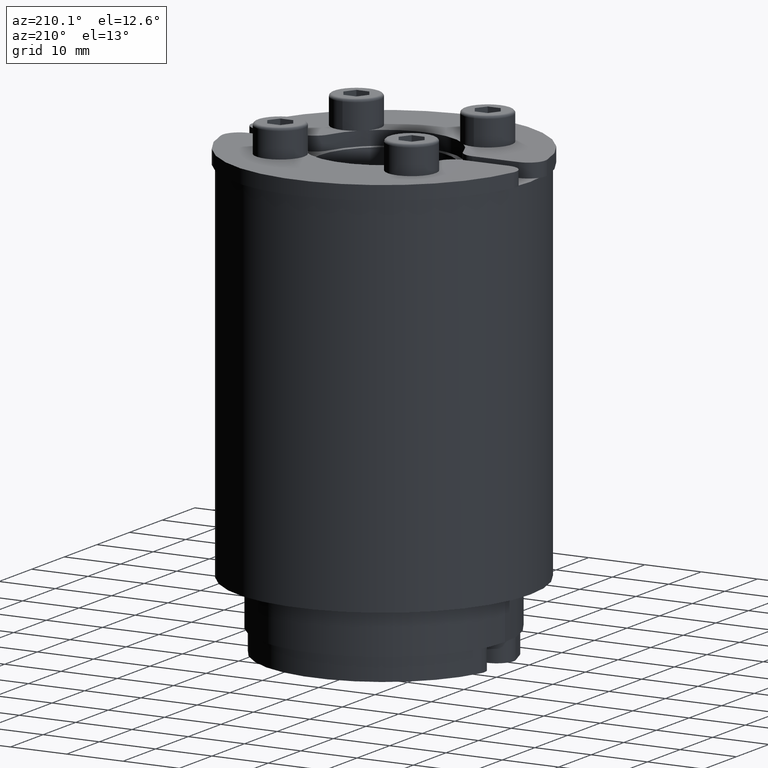
[diagram: clean part render]
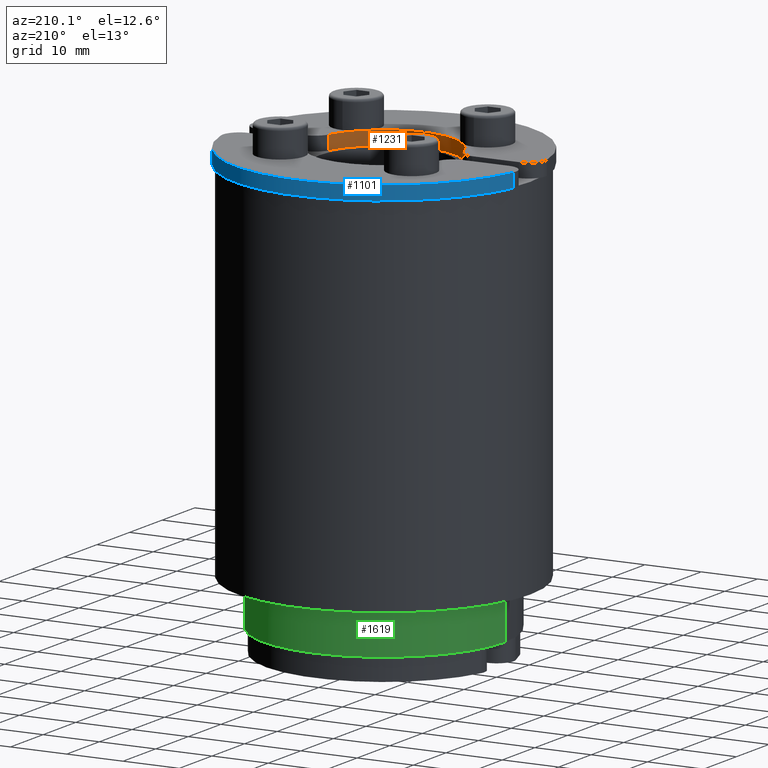
[diagram: same view with three faces highlighted in distinct colors, each labeled with its STEP entity id]
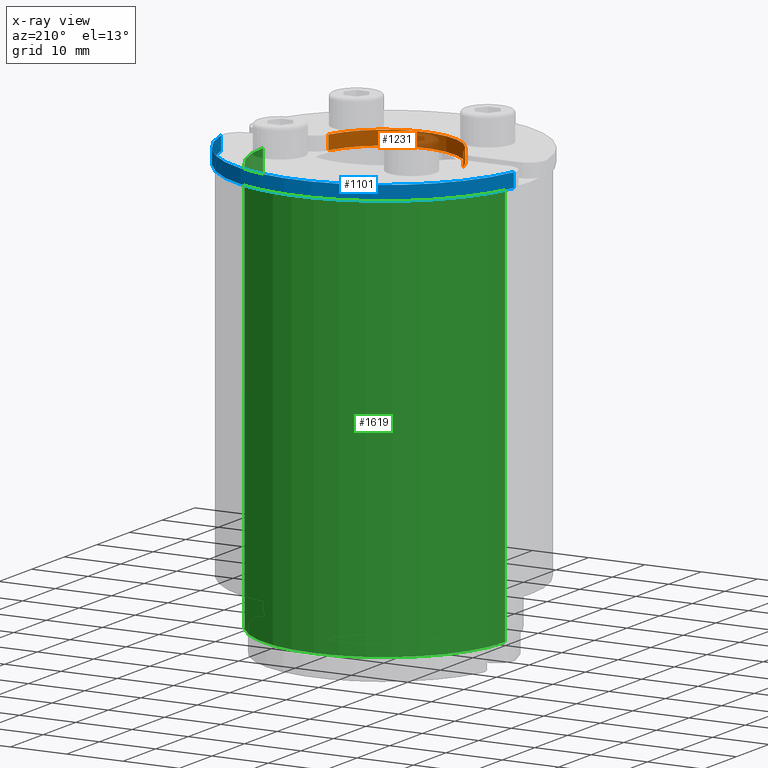
[diagram: x-ray of the same camera — body ghosted, the three highlighted faces saturated]
A machine part, auxiliary view with three faces highlighted in distinct colors.
The next image is the same camera in x-ray (body ghosted, the three faces saturated) — at least one of them is partly hidden behind the body in this view.
Their STEP definitions:

[orange] entity #1231 — the highlighted cylindrical surface (partial cylindrical patch) has radius 12.5 mm, axis along (0, 0, 1).
#1171=CARTESIAN_POINT('',(12.107005237132807,27.977345440083496,0.0));
#1172=VERTEX_POINT('',#1171);
#1181=CARTESIAN_POINT('',(12.107005237132809,27.977345440083496,2.5));
#1182=VERTEX_POINT('',#1181);
#1190=CARTESIAN_POINT('',(12.107005237132807,27.977345440083496,0.0));
#1191=DIRECTION('',(0.0,0.0,1.0));
#1192=VECTOR('',#1191,2.5);
#1193=LINE('',#1190,#1192);
#1194=EDGE_CURVE('',#1172,#1182,#1193,.T.);
#1199=CARTESIAN_POINT('',(24.068615700190353,31.606377698147931,0.0));
#1200=DIRECTION('',(0.0,0.0,1.0));
#1201=DIRECTION('',(-0.956928837044604,-0.290322580645155,0.0));
#1202=AXIS2_PLACEMENT_3D('',#1199,#1200,#1201);
#1203=CYLINDRICAL_SURFACE('',#1202,12.500000000000002);
#1204=CARTESIAN_POINT('',(36.030226163247917,27.977345440083496,0.0));
#1205=VERTEX_POINT('',#1204);
#1206=CARTESIAN_POINT('',(24.068615700190353,31.606377698147931,0.0));
#1207=DIRECTION('',(0.0,0.0,1.0));
#1208=DIRECTION('',(-0.956928837044604,-0.290322580645155,0.0));
#1209=AXIS2_PLACEMENT_3D('',#1206,#1207,#1208);
#1210=CIRCLE('',#1209,12.5);
#1211=EDGE_CURVE('',#1172,#1205,#1210,.T.);
#1212=ORIENTED_EDGE('',*,*,#1211,.F.);
#1213=ORIENTED_EDGE('',*,*,#1194,.T.);
#1214=CARTESIAN_POINT('',(36.030226163247917,27.977345440083496,2.5));
#1215=VERTEX_POINT('',#1214);
#1216=CARTESIAN_POINT('',(24.068615700190353,31.606377698147931,2.5));
#1217=DIRECTION('',(0.0,0.0,-1.0));
#1218=DIRECTION('',(-0.956928837044604,-0.290322580645155,0.0));
#1219=AXIS2_PLACEMENT_3D('',#1216,#1217,#1218);
#1220=CIRCLE('',#1219,12.5);
#1221=EDGE_CURVE('',#1215,#1182,#1220,.T.);
#1222=ORIENTED_EDGE('',*,*,#1221,.F.);
#1223=CARTESIAN_POINT('',(36.030226163247917,27.977345440083496,0.0));
#1224=DIRECTION('',(0.0,0.0,1.0));
#1225=VECTOR('',#1224,2.5);
#1226=LINE('',#1223,#1225);
#1227=EDGE_CURVE('',#1205,#1215,#1226,.T.);
#1228=ORIENTED_EDGE('',*,*,#1227,.F.);
#1229=EDGE_LOOP('',(#1212,#1213,#1222,#1228));
#1230=FACE_OUTER_BOUND('',#1229,.T.);
#1231=ADVANCED_FACE('',(#1230),#1203,.F.);

[blue] entity #1101 — the highlighted cylindrical surface (partial cylindrical patch) has radius 26.5 mm, axis along (0, 0, 1).
#1034=CARTESIAN_POINT('',(50.078224956256861,26.531909613042053,0.0));
#1035=VERTEX_POINT('',#1034);
#1051=CARTESIAN_POINT('',(50.078224956256861,26.531909613042053,2.5));
#1052=VERTEX_POINT('',#1051);
#1060=CARTESIAN_POINT('',(50.078224956256861,26.531909613042053,0.0));
#1061=DIRECTION('',(0.0,0.0,1.0));
#1062=VECTOR('',#1061,2.5);
#1063=LINE('',#1060,#1062);
#1064=EDGE_CURVE('',#1035,#1052,#1063,.T.);
#1069=CARTESIAN_POINT('',(24.068615700190353,31.606377698147021,0.0));
#1070=DIRECTION('',(0.0,0.0,1.0));
#1071=DIRECTION('',(0.981494688908164,0.191489361702071,0.0));
#1072=AXIS2_PLACEMENT_3D('',#1069,#1070,#1071);
#1073=CYLINDRICAL_SURFACE('',#1072,26.500000000000178);
#1074=CARTESIAN_POINT('',(-1.940993555876169,26.531909613042099,0.0));
#1075=VERTEX_POINT('',#1074);
#1076=CARTESIAN_POINT('',(24.068615700190353,31.606377698147021,0.0));
#1077=DIRECTION('',(0.0,0.0,-1.0));
#1078=DIRECTION('',(0.981494688908164,0.191489361702071,0.0));
#1079=AXIS2_PLACEMENT_3D('',#1076,#1077,#1078);
#1080=CIRCLE('',#1079,26.500000000000178);
#1081=EDGE_CURVE('',#1035,#1075,#1080,.T.);
#1082=ORIENTED_EDGE('',*,*,#1081,.F.);
#1083=ORIENTED_EDGE('',*,*,#1064,.T.);
#1084=CARTESIAN_POINT('',(-1.940993555876167,26.531909613042099,2.5));
#1085=VERTEX_POINT('',#1084);
#1086=CARTESIAN_POINT('',(24.068615700190353,31.606377698147021,2.5));
#1087=DIRECTION('',(0.0,0.0,1.0));
#1088=DIRECTION('',(0.981494688908164,0.191489361702071,0.0));
#1089=AXIS2_PLACEMENT_3D('',#1086,#1087,#1088);
#1090=CIRCLE('',#1089,26.500000000000178);
#1091=EDGE_CURVE('',#1085,#1052,#1090,.T.);
#1092=ORIENTED_EDGE('',*,*,#1091,.F.);
#1093=CARTESIAN_POINT('',(-1.940993555876169,26.531909613042099,0.0));
#1094=DIRECTION('',(0.0,0.0,1.0));
#1095=VECTOR('',#1094,2.5);
#1096=LINE('',#1093,#1095);
#1097=EDGE_CURVE('',#1075,#1085,#1096,.T.);
#1098=ORIENTED_EDGE('',*,*,#1097,.F.);
#1099=EDGE_LOOP('',(#1082,#1083,#1092,#1098));
#1100=FACE_OUTER_BOUND('',#1099,.T.);
#1101=ADVANCED_FACE('',(#1100),#1073,.T.);

[green] entity #1619 — the highlighted cylindrical surface (partial cylindrical patch) has radius 21.5 mm, axis along (0, 0, 1).
#1479=CARTESIAN_POINT('',(43.697252690602397,22.442229673935365,-36.5));
#1480=VERTEX_POINT('',#1479);
#1481=CARTESIAN_POINT('',(0.697252690602397,22.442229673935369,-36.5));
#1482=VERTEX_POINT('',#1481);
#1483=CARTESIAN_POINT('',(22.197252690602397,22.442229673935365,-36.5));
#1484=DIRECTION('',(0.0,0.0,-1.0));
#1485=DIRECTION('',(-1.0,0.0,0.0));
#1486=AXIS2_PLACEMENT_3D('',#1483,#1484,#1485);
#1487=CIRCLE('',#1486,21.5);
#1488=EDGE_CURVE('',#1480,#1482,#1487,.T.);
#1527=CARTESIAN_POINT('',(0.697252690602397,22.442229673935369,36.5));
#1528=VERTEX_POINT('',#1527);
#1529=CARTESIAN_POINT('',(0.697252690602397,22.442229673935369,36.5));
#1530=DIRECTION('',(0.0,0.0,-1.0));
#1531=VECTOR('',#1530,73.0);
#1532=LINE('',#1529,#1531);
#1533=EDGE_CURVE('',#1528,#1482,#1532,.T.);
#1584=CARTESIAN_POINT('',(43.697252690602397,22.442229673935365,36.5));
#1585=VERTEX_POINT('',#1584);
#1592=CARTESIAN_POINT('',(43.697252690602397,22.442229673935365,-36.5));
#1593=DIRECTION('',(0.0,0.0,1.0));
#1594=VECTOR('',#1593,73.0);
#1595=LINE('',#1592,#1594);
#1596=EDGE_CURVE('',#1480,#1585,#1595,.T.);
#1602=CARTESIAN_POINT('',(22.197252690602397,22.442229673935365,0.0));
#1603=DIRECTION('',(0.0,0.0,1.0));
#1604=DIRECTION('',(-1.0,0.0,0.0));
#1605=AXIS2_PLACEMENT_3D('',#1602,#1603,#1604);
#1606=CYLINDRICAL_SURFACE('',#1605,21.5);
#1607=ORIENTED_EDGE('',*,*,#1596,.T.);
#1608=CARTESIAN_POINT('',(22.197252690602397,22.442229673935365,36.5));
#1609=DIRECTION('',(0.0,0.0,1.0));
#1610=DIRECTION('',(-1.0,0.0,0.0));
#1611=AXIS2_PLACEMENT_3D('',#1608,#1609,#1610);
#1612=CIRCLE('',#1611,21.5);
#1613=EDGE_CURVE('',#1528,#1585,#1612,.T.);
#1614=ORIENTED_EDGE('',*,*,#1613,.F.);
#1615=ORIENTED_EDGE('',*,*,#1533,.T.);
#1616=ORIENTED_EDGE('',*,*,#1488,.F.);
#1617=EDGE_LOOP('',(#1607,#1614,#1615,#1616));
#1618=FACE_OUTER_BOUND('',#1617,.T.);
#1619=ADVANCED_FACE('',(#1618),#1606,.T.);